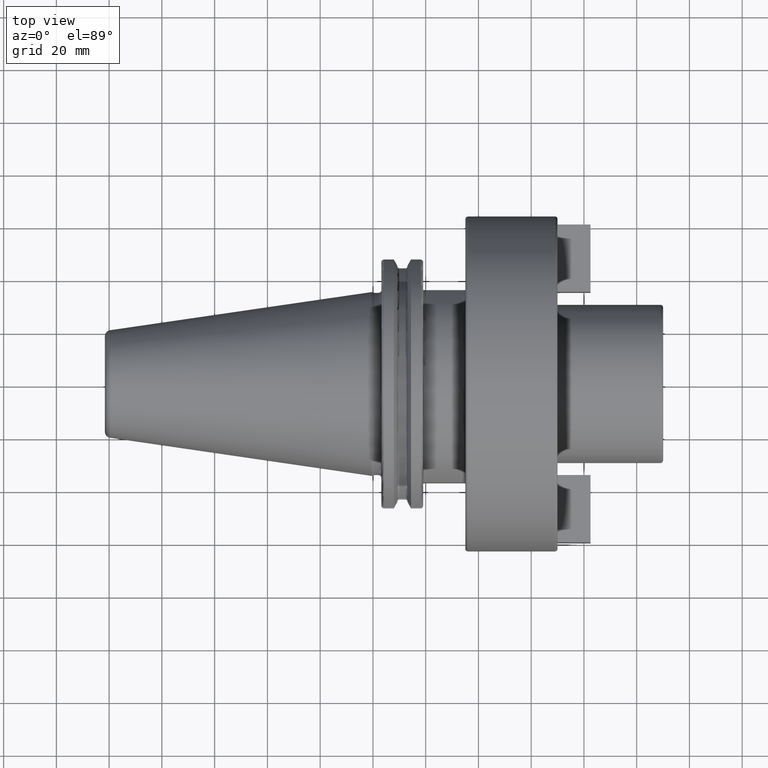
[diagram: clean part render]
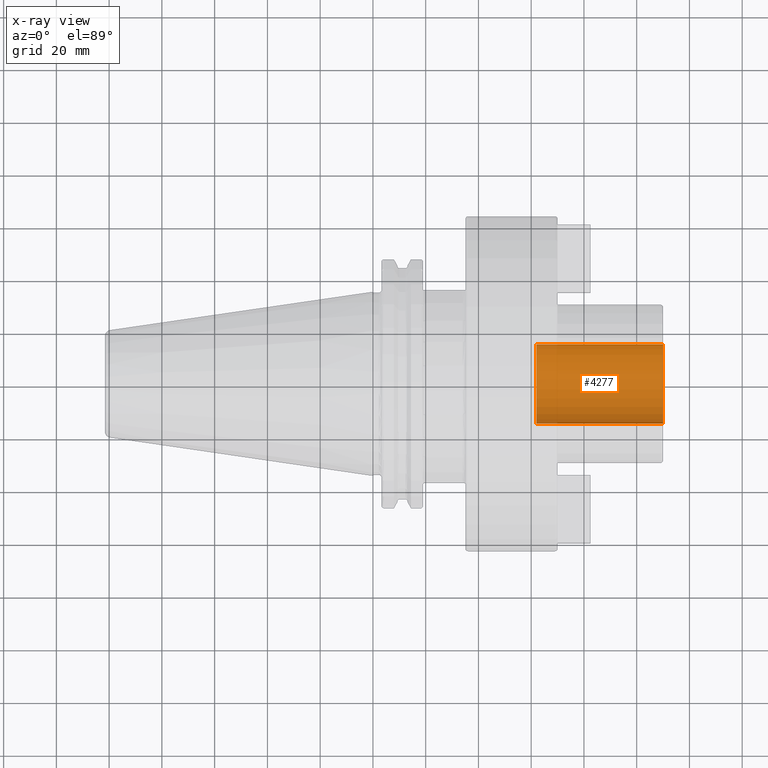
[diagram: x-ray — body ghosted, one internal face saturated and labeled with its STEP entity id]
A machine part, top view, then the same camera in x-ray: the body is ghosted and one INTERNAL B-rep face — a face not visible from any outside direction — is saturated and labeled: STEP entity #4277.
In plain terms, the highlighted cylindrical surface (partial cylindrical patch) has radius 15 mm, axis along (1, 0, 0).
Its self-contained STEP definition (entity closure, byte-faithful):
#4212=CARTESIAN_POINT('',(1.1E2,0.E0,0.E0));
#4213=DIRECTION('',(-1.E0,0.E0,0.E0));
#4214=DIRECTION('',(0.E0,1.E0,0.E0));
#4215=AXIS2_PLACEMENT_3D('',#4212,#4213,#4214);
#4222=DIRECTION('',(-1.E0,0.E0,0.E0));
#4223=VECTOR('',#4222,4.8E1);
#4224=CARTESIAN_POINT('',(1.1E2,1.5E1,0.E0));
#4225=LINE('',#4224,#4223);
#4226=DIRECTION('',(-1.E0,0.E0,0.E0));
#4227=VECTOR('',#4226,4.8E1);
#4228=CARTESIAN_POINT('',(1.1E2,-1.5E1,0.E0));
#4229=LINE('',#4228,#4227);
#4230=CARTESIAN_POINT('',(6.2E1,0.E0,0.E0));
#4231=DIRECTION('',(1.E0,0.E0,0.E0));
#4232=DIRECTION('',(0.E0,-1.E0,0.E0));
#4233=AXIS2_PLACEMENT_3D('',#4230,#4231,#4232);
#4250=CARTESIAN_POINT('',(6.2E1,-1.5E1,0.E0));
#4251=CARTESIAN_POINT('',(6.2E1,1.5E1,0.E0));
#4252=VERTEX_POINT('',#4250);
#4253=VERTEX_POINT('',#4251);
#4254=CARTESIAN_POINT('',(1.1E2,-1.5E1,0.E0));
#4255=CARTESIAN_POINT('',(1.1E2,1.5E1,0.E0));
#4256=VERTEX_POINT('',#4254);
#4257=VERTEX_POINT('',#4255);
#4262=CARTESIAN_POINT('',(2.604052663778E1,0.E0,0.E0));
#4263=DIRECTION('',(1.E0,0.E0,0.E0));
#4264=DIRECTION('',(0.E0,-1.E0,0.E0));
#4265=AXIS2_PLACEMENT_3D('',#4262,#4263,#4264);
#4266=CYLINDRICAL_SURFACE('',#4265,1.5E1);
#4268=ORIENTED_EDGE('',*,*,#4267,.T.);
#4270=ORIENTED_EDGE('',*,*,#4269,.T.);
#4272=ORIENTED_EDGE('',*,*,#4271,.T.);
#4274=ORIENTED_EDGE('',*,*,#4273,.F.);
#4275=EDGE_LOOP('',(#4268,#4270,#4272,#4274));
#4276=FACE_OUTER_BOUND('',#4275,.F.);
#4277=ADVANCED_FACE('',(#4276),#4266,.F.);
#4216=CIRCLE('',#4215,1.5E1);
#4234=CIRCLE('',#4233,1.5E1);
#4267=EDGE_CURVE('',#4257,#4256,#4216,.T.);
#4269=EDGE_CURVE('',#4256,#4252,#4229,.T.);
#4271=EDGE_CURVE('',#4252,#4253,#4234,.T.);
#4273=EDGE_CURVE('',#4257,#4253,#4225,.T.);